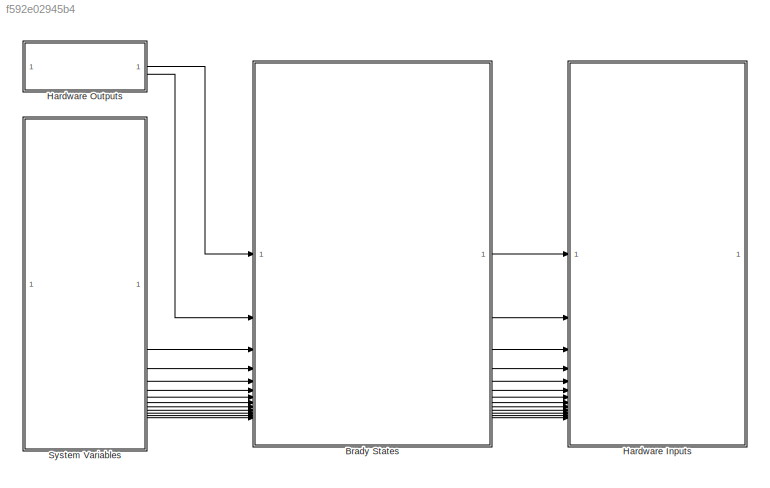
MODEL slx_f592e02945b4
KIND model
CONFIG AbsTol = auto
CONFIG EnableMultiTasking = on
CONFIG FixedStep = 1e-3
CONFIG MaxStep = auto
CONFIG MinStep = auto
CONFIG RelTol = 1e-3
CONFIG SampleTimeConstraint = Unconstrained
CONFIG SolverName = FixedStepAuto
CONFIG StartTime = 0.0
CONFIG StopTime = 10.0
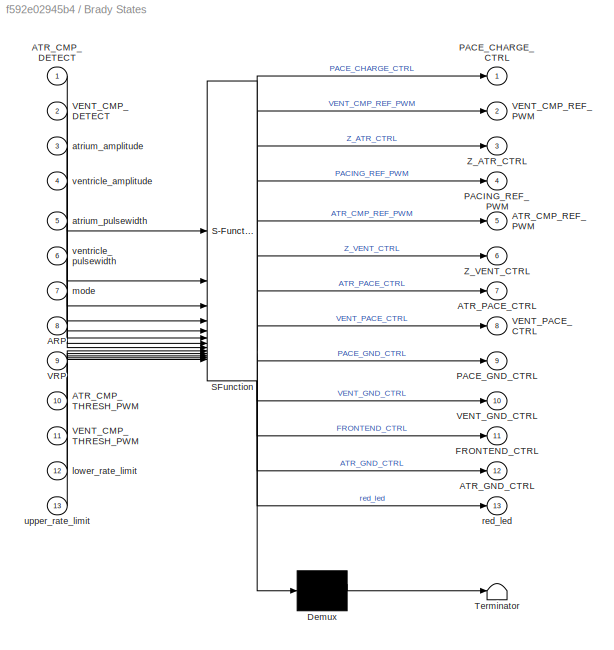
BLOCK [SubSystem] Brady States
  ErrorFcn = Stateflow.Translate.translate
  PermitHierarchicalResolution = ExplicitOnly
  PortSchema = {"entries":[{"content":{"sides":[{"content":{"connectorIds":["In1","In2","In3","In4","In5","In6","In7","In8","In9","In10","In11","In12","In13"]},"type":"ConnectorPlacement.EquallySpacedRectSide","uuid":"d1839c8f-6221-46d4-ade1-365648b0880c"},{"content":{"connectorIds":["Out1","Out2","Out3","Out4","Out5","Out6","Out7","Out8","Out9","Out12","Out10","Out11","Out13"],"side":"RIGHT"},"type":"ConnectorP...<+386ch>
  SFBlockType = Chart
  TreatAsAtomicUnit = on
BLOCK [Demux] Brady States/ Demux 
  Outputs = 1
BLOCK [S-Function] Brady States/ SFunction 
  EnableBusSupport = on
  FunctionName = sf_sfun
  PortCounts = [13 14]
  SFcnIsStateOwnerBlock = off
  SFunctionDeploymentMode = off
  Tag = Stateflow S-Function 3
BLOCK [Terminator] Brady States/ Terminator 
BLOCK [Inport] Brady States/ARP
  Port = 8
BLOCK [Inport] Brady States/ATR_CMP_DETECT
BLOCK [Outport] Brady States/ATR_CMP_REF_PWM
  Port = 5
BLOCK [Inport] Brady States/ATR_CMP_THRESH_PWM
  Port = 10
BLOCK [Outport] Brady States/ATR_GND_CTRL
  Port = 12
BLOCK [Outport] Brady States/ATR_PACE_CTRL
  Port = 7
BLOCK [Outport] Brady States/FRONTEND_CTRL
  Port = 11
BLOCK [Outport] Brady States/PACE_CHARGE_CTRL
BLOCK [Outport] Brady States/PACE_GND_CTRL
  Port = 9
BLOCK [Outport] Brady States/PACING_REF_PWM
  Port = 4
BLOCK [Inport] Brady States/VENT_CMP_DETECT
  Port = 2
BLOCK [Outport] Brady States/VENT_CMP_REF_PWM
  Port = 2
BLOCK [Inport] Brady States/VENT_CMP_THRESH_PWM
  Port = 11
BLOCK [Outport] Brady States/VENT_GND_CTRL
  Port = 10
BLOCK [Outport] Brady States/VENT_PACE_CTRL
  Port = 8
BLOCK [Inport] Brady States/VRP
  Port = 9
BLOCK [Outport] Brady States/Z_ATR_CTRL
  Port = 3
BLOCK [Outport] Brady States/Z_VENT_CTRL
  Port = 6
BLOCK [Inport] Brady States/atrium_amplitude
  Port = 3
BLOCK [Inport] Brady States/atrium_pulsewidth
  Port = 5
BLOCK [Inport] Brady States/lower_rate_limit
  Port = 12
BLOCK [Inport] Brady States/mode
  Port = 7
BLOCK [Outport] Brady States/red_led
  Port = 13
BLOCK [Inport] Brady States/upper_rate_limit
  Port = 13
BLOCK [Inport] Brady States/ventricle_amplitude
  Port = 4
BLOCK [Inport] Brady States/ventricle_pulsewidth
  Port = 6
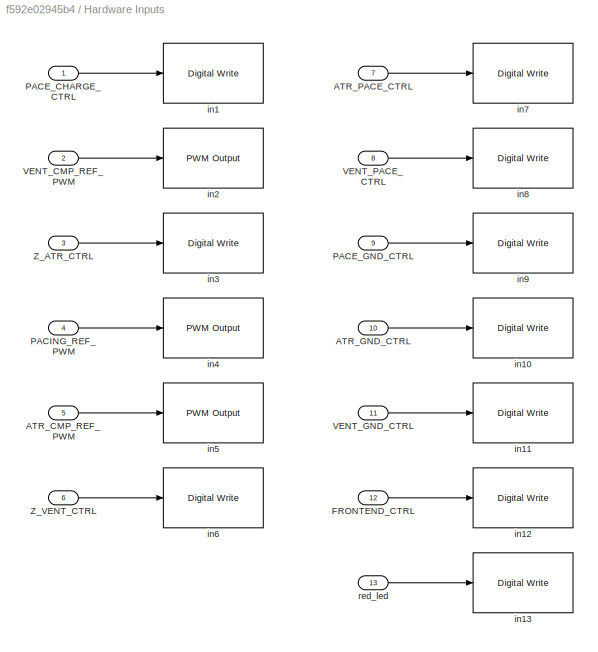
BLOCK [SubSystem] Hardware Inputs
BLOCK [Inport] Hardware Inputs/ATR_CMP_REF_PWM
  Port = 5
BLOCK [Inport] Hardware Inputs/ATR_GND_CTRL
  Port = 10
BLOCK [Inport] Hardware Inputs/ATR_PACE_CTRL
  Port = 7
BLOCK [Inport] Hardware Inputs/FRONTEND_CTRL
  Port = 12
BLOCK [Inport] Hardware Inputs/PACE_CHARGE_CTRL
BLOCK [Inport] Hardware Inputs/PACE_GND_CTRL
  Port = 9
BLOCK [Inport] Hardware Inputs/PACING_REF_PWM
  Port = 4
BLOCK [Inport] Hardware Inputs/VENT_CMP_REF_PWM
  Port = 2
BLOCK [Inport] Hardware Inputs/VENT_GND_CTRL
  Port = 11
BLOCK [Inport] Hardware Inputs/VENT_PACE_CTRL
  Port = 8
BLOCK [Inport] Hardware Inputs/Z_ATR_CTRL
  Port = 3
BLOCK [Inport] Hardware Inputs/Z_VENT_CTRL
  Port = 6
BLOCK [Reference] Hardware Inputs/in1  REF=frdmk64flib/Digital Write
  SourceBlock = frdmk64flib/Digital Write
  SourceType = freedomk64f.DigitalWrite
BLOCK [Reference] Hardware Inputs/in10  REF=frdmk64flib/Digital Write
  SourceBlock = frdmk64flib/Digital Write
  SourceType = freedomk64f.DigitalWrite
BLOCK [Reference] Hardware Inputs/in11  REF=frdmk64flib/Digital Write
  SourceBlock = frdmk64flib/Digital Write
  SourceType = freedomk64f.DigitalWrite
BLOCK [Reference] Hardware Inputs/in12  REF=frdmk64flib/Digital Write
  SourceBlock = frdmk64flib/Digital Write
  SourceType = freedomk64f.DigitalWrite
BLOCK [Reference] Hardware Inputs/in13  REF=frdmk64flib/Digital Write
  SourceBlock = frdmk64flib/Digital Write
  SourceType = freedomk64f.DigitalWrite
BLOCK [Reference] Hardware Inputs/in2  REF=frdmk64flib/PWM Output
  SourceBlock = frdmk64flib/PWM Output
  SourceType = freedomk64f.PWMOutput
BLOCK [Reference] Hardware Inputs/in3  REF=frdmk64flib/Digital Write
  SourceBlock = frdmk64flib/Digital Write
  SourceType = freedomk64f.DigitalWrite
BLOCK [Reference] Hardware Inputs/in4  REF=frdmk64flib/PWM Output
  SourceBlock = frdmk64flib/PWM Output
  SourceType = freedomk64f.PWMOutput
BLOCK [Reference] Hardware Inputs/in5  REF=frdmk64flib/PWM Output
  SourceBlock = frdmk64flib/PWM Output
  SourceType = freedomk64f.PWMOutput
BLOCK [Reference] Hardware Inputs/in6  REF=frdmk64flib/Digital Write
  SourceBlock = frdmk64flib/Digital Write
  SourceType = freedomk64f.DigitalWrite
BLOCK [Reference] Hardware Inputs/in7  REF=frdmk64flib/Digital Write
  SourceBlock = frdmk64flib/Digital Write
  SourceType = freedomk64f.DigitalWrite
BLOCK [Reference] Hardware Inputs/in8  REF=frdmk64flib/Digital Write
  SourceBlock = frdmk64flib/Digital Write
  SourceType = freedomk64f.DigitalWrite
BLOCK [Reference] Hardware Inputs/in9  REF=frdmk64flib/Digital Write
  SourceBlock = frdmk64flib/Digital Write
  SourceType = freedomk64f.DigitalWrite
BLOCK [Inport] Hardware Inputs/red_led
  Port = 13
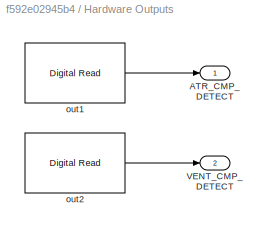
BLOCK [SubSystem] Hardware Outputs
BLOCK [Outport] Hardware Outputs/ATR_CMP_DETECT
BLOCK [Outport] Hardware Outputs/VENT_CMP_DETECT
  Port = 2
BLOCK [Reference] Hardware Outputs/out1  REF=frdmk64flib/Digital Read
  SourceBlock = frdmk64flib/Digital Read
  SourceType = freedomk64f.DigitalRead
BLOCK [Reference] Hardware Outputs/out2  REF=frdmk64flib/Digital Read
  SourceBlock = frdmk64flib/Digital Read
  SourceType = freedomk64f.DigitalRead
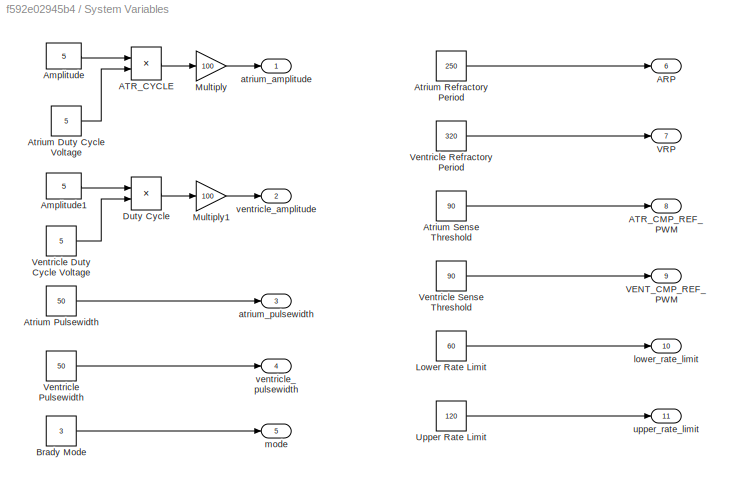
BLOCK [SubSystem] System Variables
BLOCK [Outport] System Variables/ARP
  Port = 6
BLOCK [Outport] System Variables/ATR_CMP_REF_PWM
  Port = 8
BLOCK [Product] System Variables/ATR_CYCLE
  Inputs = */
BLOCK [Constant] System Variables/Amplitude
  Value = 5
BLOCK [Constant] System Variables/Amplitude1
  Value = 5
BLOCK [Constant] System Variables/Atrium Duty Cycle Voltage
  Value = 5
BLOCK [Constant] System Variables/Atrium Pulsewidth
  Value = 50
BLOCK [Constant] System Variables/Atrium Refractory Period
  Value = 250
BLOCK [Constant] System Variables/Atrium Sense Threshold
  Value = 90
BLOCK [Constant] System Variables/Brady Mode
  Value = 3
BLOCK [Product] System Variables/Duty Cycle
  Inputs = */
BLOCK [Constant] System Variables/Lower Rate Limit
  Value = 60
BLOCK [Gain] System Variables/Multiply
  Gain = 100
BLOCK [Gain] System Variables/Multiply1
  Gain = 100
BLOCK [Constant] System Variables/Upper Rate Limit
  Value = 120
BLOCK [Outport] System Variables/VENT_CMP_REF_PWM
  Port = 9
BLOCK [Outport] System Variables/VRP
  Port = 7
BLOCK [Constant] System Variables/Ventricle Duty Cycle Voltage
  Value = 5
BLOCK [Constant] System Variables/Ventricle Pulsewidth
  Value = 50
BLOCK [Constant] System Variables/Ventricle Refractory Period
  Value = 320
BLOCK [Constant] System Variables/Ventricle Sense Threshold
  Value = 90
BLOCK [Outport] System Variables/atrium_amplitude
BLOCK [Outport] System Variables/atrium_pulsewidth
  Port = 3
BLOCK [Outport] System Variables/lower_rate_limit
  Port = 10
BLOCK [Outport] System Variables/mode
  Port = 5
BLOCK [Outport] System Variables/upper_rate_limit
  Port = 11
BLOCK [Outport] System Variables/ventricle_amplitude
  Port = 2
BLOCK [Outport] System Variables/ventricle_pulsewidth
  Port = 4
LINE Brady States:1 -> Hardware Inputs:1
LINE Brady States:10 -> Hardware Inputs:11
LINE Brady States:11 -> Hardware Inputs:12
LINE Brady States:12 -> Hardware Inputs:10
LINE Brady States:13 -> Hardware Inputs:13
LINE Brady States:2 -> Hardware Inputs:2
LINE Brady States:3 -> Hardware Inputs:3
LINE Brady States:4 -> Hardware Inputs:4
LINE Brady States:5 -> Hardware Inputs:5
LINE Brady States:6 -> Hardware Inputs:6
LINE Brady States:7 -> Hardware Inputs:7
LINE Brady States:8 -> Hardware Inputs:8
LINE Brady States:9 -> Hardware Inputs:9
LINE Hardware Inputs/ATR_CMP_REF_PWM:1 -> Hardware Inputs/in5:1
LINE Hardware Inputs/ATR_GND_CTRL:1 -> Hardware Inputs/in10:1
LINE Hardware Inputs/ATR_PACE_CTRL:1 -> Hardware Inputs/in7:1
LINE Hardware Inputs/FRONTEND_CTRL:1 -> Hardware Inputs/in12:1
LINE Hardware Inputs/PACE_CHARGE_CTRL:1 -> Hardware Inputs/in1:1
LINE Hardware Inputs/PACE_GND_CTRL:1 -> Hardware Inputs/in9:1
LINE Hardware Inputs/PACING_REF_PWM:1 -> Hardware Inputs/in4:1
LINE Hardware Inputs/VENT_CMP_REF_PWM:1 -> Hardware Inputs/in2:1
LINE Hardware Inputs/VENT_GND_CTRL:1 -> Hardware Inputs/in11:1
LINE Hardware Inputs/VENT_PACE_CTRL:1 -> Hardware Inputs/in8:1
LINE Hardware Inputs/Z_ATR_CTRL:1 -> Hardware Inputs/in3:1
LINE Hardware Inputs/Z_VENT_CTRL:1 -> Hardware Inputs/in6:1
LINE Hardware Inputs/red_led:1 -> Hardware Inputs/in13:1
LINE Hardware Outputs/out1:1 -> Hardware Outputs/ATR_CMP_DETECT:1
LINE Hardware Outputs/out2:1 -> Hardware Outputs/VENT_CMP_DETECT:1
LINE Hardware Outputs:1 -> Brady States:1
LINE Hardware Outputs:2 -> Brady States:2
LINE System Variables/ATR_CYCLE:1 -> System Variables/Multiply:1
LINE System Variables/Amplitude1:1 -> System Variables/Duty Cycle:1
LINE System Variables/Amplitude:1 -> System Variables/ATR_CYCLE:1
LINE System Variables/Atrium Duty Cycle Voltage:1 -> System Variables/ATR_CYCLE:2
LINE System Variables/Atrium Pulsewidth:1 -> System Variables/atrium_pulsewidth:1
LINE System Variables/Atrium Refractory Period:1 -> System Variables/ARP:1
LINE System Variables/Atrium Sense Threshold:1 -> System Variables/ATR_CMP_REF_PWM:1
LINE System Variables/Brady Mode:1 -> System Variables/mode:1
LINE System Variables/Duty Cycle:1 -> System Variables/Multiply1:1
LINE System Variables/Lower Rate Limit:1 -> System Variables/lower_rate_limit:1
LINE System Variables/Multiply1:1 -> System Variables/ventricle_amplitude:1
LINE System Variables/Multiply:1 -> System Variables/atrium_amplitude:1
LINE System Variables/Upper Rate Limit:1 -> System Variables/upper_rate_limit:1
LINE System Variables/Ventricle Duty Cycle Voltage:1 -> System Variables/Duty Cycle:2
LINE System Variables/Ventricle Pulsewidth:1 -> System Variables/ventricle_pulsewidth:1
LINE System Variables/Ventricle Refractory Period:1 -> System Variables/VRP:1
LINE System Variables/Ventricle Sense Threshold:1 -> System Variables/VENT_CMP_REF_PWM:1
LINE System Variables:1 -> Brady States:3
LINE System Variables:10 -> Brady States:12
LINE System Variables:11 -> Brady States:13
LINE System Variables:2 -> Brady States:4
LINE System Variables:3 -> Brady States:5
LINE System Variables:4 -> Brady States:6
LINE System Variables:5 -> Brady States:7
LINE System Variables:6 -> Brady States:8
LINE System Variables:7 -> Brady States:9
LINE System Variables:8 -> Brady States:10
LINE System Variables:9 -> Brady States:11
CHART Brady States states=15 transitions=37
  STATE_LABEL 'AOO'
  STATE_LABEL 'Discharging\n\nentry:\n%discharge C22\n%charge C21\nPACE_CHARGE_CTRL = false\nPACE_GND_CTRL = true\nATR_PACE_CTRL = true\nATR_GND_CTRL = false\nZ_ATR_CTRL = false\nZ_VENT_CTRL = false\nVENT_GND_CTRL = false\nVENT_PACE_CTRL  = false\nred_led=true %for testing'
  STATE_LABEL 'Charging\n\nentry:\n%charge C22\nATR_PACE_CTRL = false\nVENT_PACE_CTRL = false\nPACING_REF_PWM = atrium_amplitude\nPACE_CHARGE_CTRL = true\n%discharge C21 into atrium\nPACE_GND_CTRL = true\nVENT_PACE_CTRL = false\nZ_ATR_CTRL = false\nZ_VENT_CTRL = false\nATR_PACE_CTRL = false\nATR_GND_CTRL = true\nVENT_GND_CTRL = false\nred_led=false %for testing'
  STATE_LABEL '[after(((60000/lower_rate_limit)-atrium_pulsewidth),msec)]'
  STATE_LABEL '[mode==0]'
  STATE_LABEL '[after((atrium_pulsewidth),msec)]'
  STATE_LABEL '[mode~=0]'
  STATE_LABEL 'Discharging\n\nentry:\n%discharge C22\n%charge C21\nPACE_CHARGE_CTRL = false\nPACE_GND_CTRL = true\nATR_PACE_CTRL = true\nATR_GND_CTRL = false\nZ_ATR_CTRL = false\nZ_VENT_CTRL = false\nVENT_GND_CTRL = false\nVENT_PACE_CTRL  = false\nred_led=true %for testing'
  STATE_LABEL 'Charging\n\nentry:\n%charge C22\nATR_PACE_CTRL = false\nVENT_PACE_CTRL = false\nPACING_REF_PWM = atrium_amplitude\nPACE_CHARGE_CTRL = true\n%discharge C21 into atrium\nPACE_GND_CTRL = true\nVENT_PACE_CTRL = false\nZ_ATR_CTRL = false\nZ_VENT_CTRL = false\nATR_PACE_CTRL = false\nATR_GND_CTRL = true\nVENT_GND_CTRL = false\nred_led=false %for testing'
  STATE_LABEL 'Mode'
  STATE_LABEL 'VOO'
  STATE_LABEL 'Charging\n\nentry:\n%charge C22\nATR_PACE_CTRL = false\nVENT_PACE_CTRL = false\nPACING_REF_PWM = ventricle_amplitude\nPACE_CHARGE_CTRL = true\n%discharge C21 into ventricle ground\nPACE_GND_CTRL = true\nVENT_PACE_CTRL = false\nZ_ATR_CTRL = false\nZ_VENT_CTRL = false\nATR_PACE_CTRL = false\nATR_GND_CTRL = false\nVENT_GND_CTRL = true\nred_led=false'
  STATE_LABEL 'Discharging\n\nentry:\n%discharge C22 to charge C21\nPACE_CHARGE_CTRL = false\nPACE_GND_CTRL = true\nATR_PACE_CTRL = false\nATR_GND_CTRL = false\nZ_VENT_CTRL = false\nZ_ATR_CTRL = false\nVENT_GND_CTRL = false\nVENT_PACE_CTRL = true\nred_led=true'
  STATE_LABEL '[after(((60000/lower_rate_limit)-ventricle_pulsewidth),msec)]'
  STATE_LABEL '[mode==1]'
  STATE_LABEL '[after((ventricle_pulsewidth),msec)]'
  STATE_LABEL '[mode~=1]'
  STATE_LABEL 'Charging\n\nentry:\n%charge C22\nATR_PACE_CTRL = false\nVENT_PACE_CTRL = false\nPACING_REF_PWM = ventricle_amplitude\nPACE_CHARGE_CTRL = true\n%discharge C21 into ventricle ground\nPACE_GND_CTRL = true\nVENT_PACE_CTRL = false\nZ_ATR_CTRL = false\nZ_VENT_CTRL = false\nATR_PACE_CTRL = false\nATR_GND_CTRL = false\nVENT_GND_CTRL = true\nred_led=false'
  STATE_LABEL 'Discharging\n\nentry:\n%discharge C22 to charge C21\nPACE_CHARGE_CTRL = false\nPACE_GND_CTRL = true\nATR_PACE_CTRL = false\nATR_GND_CTRL = false\nZ_VENT_CTRL = false\nZ_ATR_CTRL = false\nVENT_GND_CTRL = false\nVENT_PACE_CTRL = true\nred_led=true'
  STATE_LABEL 'AAI'
  STATE_LABEL 'Charging\n\nentry:\n%sensing\nFRONTEND_CTRL = true\nATR_CMP_REF_PWM = ATR_CMP_THRESH_PWM\n%charge C22\nATR_PACE_CTRL = false\nVENT_PACE_CTRL = false\nPACING_REF_PWM = atrium_amplitude\nPACE_CHARGE_CTRL = true\n%discharge C21 into atrium\nPACE_GND_CTRL = true\nVENT_PACE_CTRL = false\nZ_ATR_CTRL = false\nZ_VENT_CTRL = false\nATR_PACE_CTRL = false\nATR_GND_CTRL = true\nVENT_GND_CTRL = false\n'
  STATE_LABEL 'Discharging\n\nentry:\n%discharge C22 to charge C21\nPACE_CHARGE_CTRL = false\nPACE_GND_CTRL = true\nVENT_PACE_CTRL = false\nVENT_GND_CTRL = false\nZ_VENT_CTRL = false\nZ_ATR_CTRL = false\nATR_GND_CTRL = false\nATR_PACE_CTRL = true'
  STATE_LABEL 'Transition\n%check for sensing\nFRONTEND_CTRL = true'
  STATE_LABEL '[after(atrium_pulsewidth, msec)]'
  STATE_LABEL '[mode==2]'
  STATE_LABEL '[after(ARP, msec)]'
  STATE_LABEL '[mode~=2]'
  STATE_LABEL '[after(((60000/lower_rate_limit)-atrium_pulsewidth-ARP),msec)]'
  STATE_LABEL '[ATR_CMP_DETECT == true]'
  STATE_LABEL 'Charging\n\nentry:\n%sensing\nFRONTEND_CTRL = true\nATR_CMP_REF_PWM = ATR_CMP_THRESH_PWM\n%charge C22\nATR_PACE_CTRL = false\nVENT_PACE_CTRL = false\nPACING_REF_PWM = atrium_amplitude\nPACE_CHARGE_CTRL = true\n%discharge C21 into atrium\nPACE_GND_CTRL = true\nVENT_PACE_CTRL = false\nZ_ATR_CTRL = false\nZ_VENT_CTRL = false\nATR_PACE_CTRL = false\nATR_GND_CTRL = true\nVENT_GND_CTRL = false\n'
  STATE_LABEL 'Discharging\n\nentry:\n%discharge C22 to charge C21\nPACE_CHARGE_CTRL = false\nPACE_GND_CTRL = true\nVENT_PACE_CTRL = false\nVENT_GND_CTRL = false\nZ_VENT_CTRL = false\nZ_ATR_CTRL = false\nATR_GND_CTRL = false\nATR_PACE_CTRL = true'
  STATE_LABEL 'Transition\n%check for sensing\nFRONTEND_CTRL = true'
  STATE_LABEL 'VVI'
  STATE_LABEL 'Charging\n\nentry:\n%sensing\nFRONTEND_CTRL = true\nVENT_CMP_REF_PWM = VENT_CMP_THRESH_PWM\n%charge C22\nATR_PACE_CTRL = false\nVENT_PACE_CTRL = false\nPACING_REF_PWM = ventricle_amplitude\nPACE_CHARGE_CTRL = true\n%Discharge C21 into ventricle\nPACE_GND_CTRL = true\nVENT_PACE_CTRL = false\nZ_ATR_CTRL = false\nZ_VENT_CTRL = false\nATR_PACE_CTRL = false\nATR_GND_CTRL = false\nVENT_GND_CTRL = true'
  STATE_LABEL 'Discharging\n\nentry:\n%discharge C22 to charge C21\nPACE_CHARGE_CTRL = false\nPACE_GND_CTRL = true\nATR_PACE_CTRL = false\nATR_GND_CTRL = false\nZ_VENT_CTRL = false\nZ_ATR_CTRL = false\nVENT_GND_CTRL = false\nVENT_PACE_CTRL = true'
  STATE_LABEL 'Transition\n%check for sense\nFRONTEND_CTRL = true'
  STATE_LABEL '[after(ventricle_pulsewidth, msec)]'
  STATE_LABEL '[mode==3]'
  STATE_LABEL '[after(VRP, msec)]'
  STATE_LABEL '[after(((60000/lower_rate_limit)-ventricle_pulsewidth-VRP),msec)]'
CHART  states=0 transitions=0
